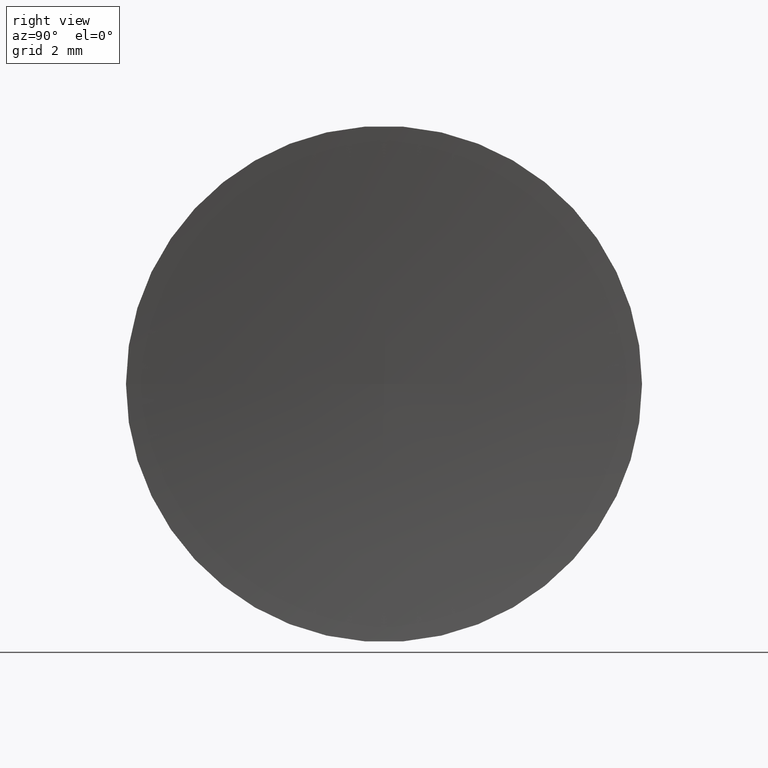
[diagram: clean part render]
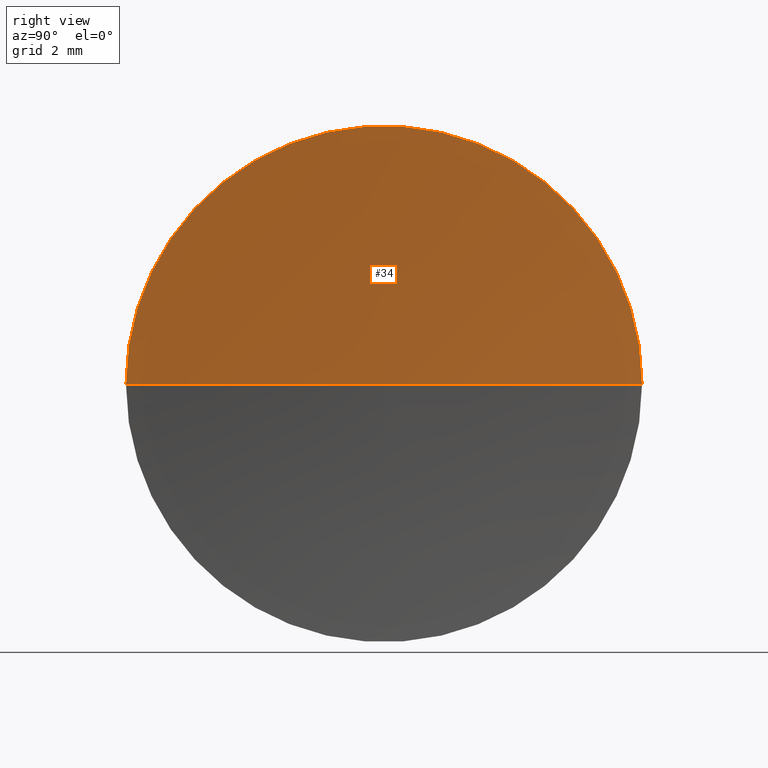
[diagram: same view with one face highlighted and labeled with its STEP entity id]
A machine part, right view. The second image highlights one B-rep face of the part: STEP entity #34.
In plain terms, the highlighted toroidal blend (fillet) surface has major radius 0.0001 mm and minor (blend) radius 82.62 mm.
Its self-contained STEP definition (entity closure, byte-faithful):
#5 = DIRECTION ( 'NONE',  ( -1.000000000000000000, 4.058245434298766700E-016, -0.0000000000000000000 ) ) ;
#20 = DIRECTION ( 'NONE',  ( -1.000000000000000000, 0.0000000000000000000, 0.0000000000000000000 ) ) ;
#24 = ORIENTED_EDGE ( 'NONE', *, *, #48, .F. ) ;
#32 = CARTESIAN_POINT ( 'NONE',  ( 46.74264137625596800, 34.06225218280607700, 9.797174393178817800E-016 ) ) ;
#34 = ADVANCED_FACE ( 'NONE', ( #78 ), #104, .F. ) ;
#40 = DIRECTION ( 'NONE',  ( -4.969917281268344600E-032, -1.224646799147353200E-016, 1.000000000000000000 ) ) ;
#41 = CARTESIAN_POINT ( 'NONE',  ( 46.74264137625596800, 18.06225218280609100, 0.0000000000000000000 ) ) ;
#42 = CIRCLE ( 'NONE', #124, 8.000000000000000000 ) ;
#44 = DIRECTION ( 'NONE',  ( -1.000000000000000000, 4.058245434298766700E-016, -0.0000000000000000000 ) ) ;
#48 = EDGE_CURVE ( 'NONE', #141, #147, #110, .T. ) ;
#53 = CARTESIAN_POINT ( 'NONE',  ( 128.9744226261749700, 26.06225218280604800, 0.0000000000000000000 ) ) ;
#59 = EDGE_LOOP ( 'NONE', ( #24, #158, #93 ) ) ;
#66 = DIRECTION ( 'NONE',  ( 0.0000000000000000000, -0.0000000000000000000, -1.000000000000000000 ) ) ;
#69 = DIRECTION ( 'NONE',  ( 0.0000000000000000000, -1.000000000000000000, 0.0000000000000000000 ) ) ;
#70 = VERTEX_POINT ( 'NONE', #41 ) ;
#74 = EDGE_CURVE ( 'NONE', #70, #147, #107, .T. ) ;
#75 = AXIS2_PLACEMENT_3D ( 'NONE', #148, #66, #20 ) ;
#78 = FACE_OUTER_BOUND ( 'NONE', #59, .T. ) ;
#93 = ORIENTED_EDGE ( 'NONE', *, *, #74, .T. ) ;
#104 = TOROIDAL_SURFACE ( 'NONE', #162, 9.047141961307206700E-005, 82.62000000000003300 ) ;
#107 = CIRCLE ( 'NONE', #75, 82.62000000000003300 ) ;
#110 = CIRCLE ( 'NONE', #114, 82.62000000000003300 ) ;
#112 = DIRECTION ( 'NONE',  ( 0.0000000000000000000, -1.000000000000000000, -1.224646799147353000E-016 ) ) ;
#113 = CARTESIAN_POINT ( 'NONE',  ( 128.9744226261749700, 26.06234265422566300, 1.107955344434657900E-020 ) ) ;
#114 = AXIS2_PLACEMENT_3D ( 'NONE', #113, #40, #112 ) ;
#124 = AXIS2_PLACEMENT_3D ( 'NONE', #142, #44, #69 ) ;
#137 = DIRECTION ( 'NONE',  ( -4.058245434298766700E-016, -1.000000000000000000, 0.0000000000000000000 ) ) ;
#141 = VERTEX_POINT ( 'NONE', #32 ) ;
#142 = CARTESIAN_POINT ( 'NONE',  ( 46.74264137625597500, 26.06225218280608400, 0.0000000000000000000 ) ) ;
#147 = VERTEX_POINT ( 'NONE', #151 ) ;
#148 = CARTESIAN_POINT ( 'NONE',  ( 128.9744226261749700, 26.06216171138643700, 0.0000000000000000000 ) ) ;
#151 = CARTESIAN_POINT ( 'NONE',  ( 46.35442262622449800, 26.06225218280608400, 0.0000000000000000000 ) ) ;
#156 = EDGE_CURVE ( 'NONE', #70, #141, #42, .T. ) ;
#158 = ORIENTED_EDGE ( 'NONE', *, *, #156, .F. ) ;
#162 = AXIS2_PLACEMENT_3D ( 'NONE', #53, #5, #137 ) ;